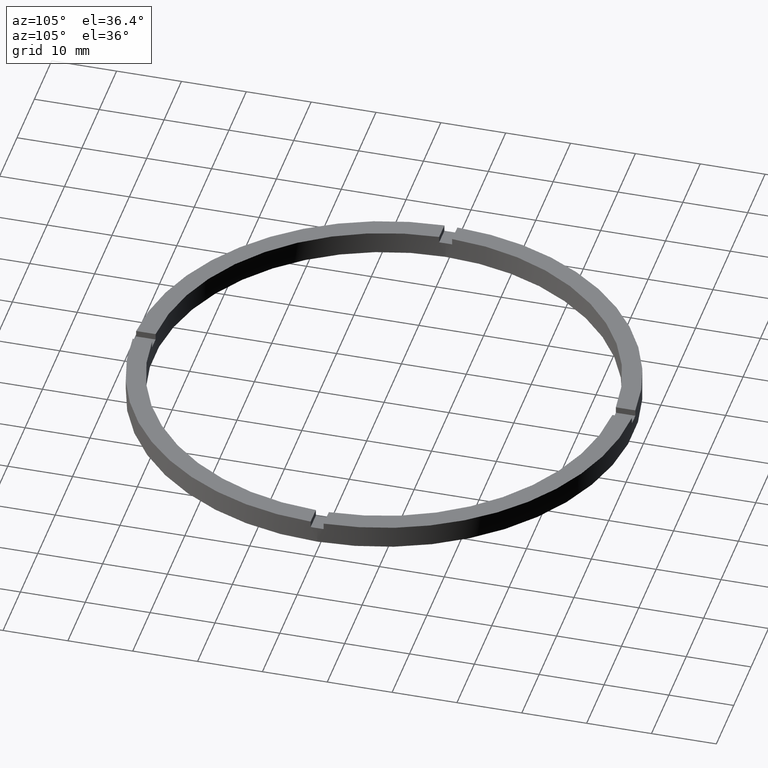
[diagram: clean part render]
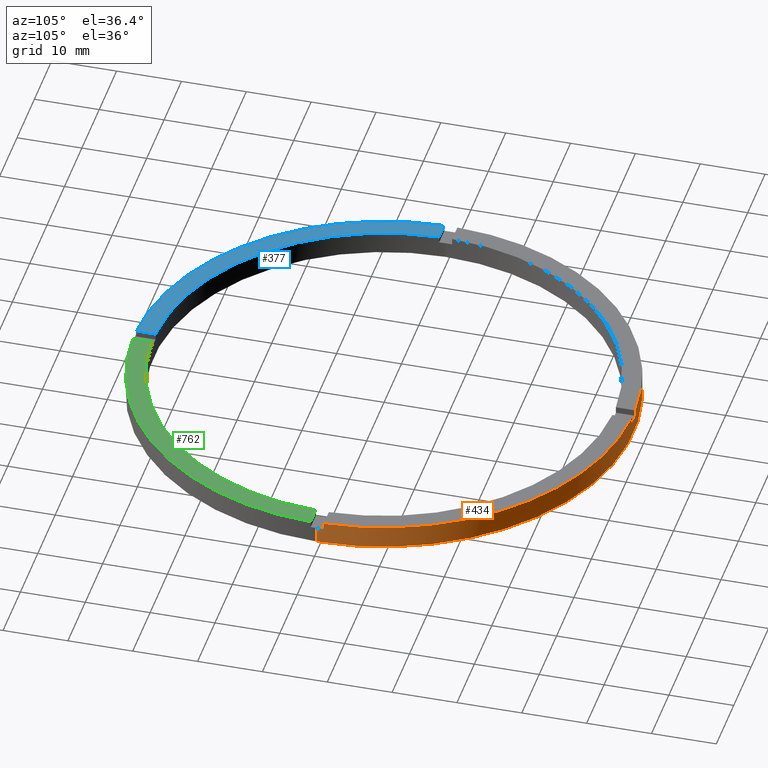
[diagram: same view with three faces highlighted in distinct colors, each labeled with its STEP entity id]
A machine part, auxiliary view with three faces highlighted in distinct colors.
Their STEP definitions:

[orange] entity #434 — the highlighted cylindrical surface (partial cylindrical patch) has radius 38.5 mm, axis along (-0, -0, -1).
#16 = AXIS2_PLACEMENT_3D ( 'NONE', #559, #515, #681 ) ;
#24 = LINE ( 'NONE', #710, #50 ) ;
#26 = EDGE_CURVE ( 'NONE', #741, #753, #661, .T. ) ;
#29 = LINE ( 'NONE', #443, #564 ) ;
#38 = DIRECTION ( 'NONE',  ( 0.000000000000000000, 0.000000000000000000, 1.000000000000000000 ) ) ;
#42 = CARTESIAN_POINT ( 'NONE',  ( -38.50000000000000000, 0.000000000000000000, 3.500000000000000000 ) ) ;
#46 = DIRECTION ( 'NONE',  ( -0.000000000000000000, -0.000000000000000000, -1.000000000000000000 ) ) ;
#50 = VECTOR ( 'NONE', #260, 1000.000000000000000 ) ;
#51 = CIRCLE ( 'NONE', #395, 38.50000000000000000 ) ;
#54 = VECTOR ( 'NONE', #46, 1000.000000000000000 ) ;
#57 = AXIS2_PLACEMENT_3D ( 'NONE', #540, #270, #720 ) ;
#73 = LINE ( 'NONE', #42, #92 ) ;
#76 = FACE_OUTER_BOUND ( 'NONE', #704, .T. ) ;
#78 = DIRECTION ( 'NONE',  ( 0.000000000000000000, 0.000000000000000000, 1.000000000000000000 ) ) ;
#79 = VECTOR ( 'NONE', #290, 1000.000000000000000 ) ;
#92 = VECTOR ( 'NONE', #597, 1000.000000000000000 ) ;
#97 = DIRECTION ( 'NONE',  ( 0.000000000000000000, 0.000000000000000000, 1.000000000000000000 ) ) ;
#104 = DIRECTION ( 'NONE',  ( 1.000000000000000000, 0.000000000000000000, 0.000000000000000000 ) ) ;
#113 = EDGE_CURVE ( 'NONE', #451, #485, #677, .T. ) ;
#119 = CARTESIAN_POINT ( 'NONE',  ( 38.50000000000000000, 4.714890176717309515E-15, 2.500000000000000000 ) ) ;
#123 = CARTESIAN_POINT ( 'NONE',  ( 0.000000000000000000, 0.000000000000000000, 0.000000000000000000 ) ) ;
#126 = AXIS2_PLACEMENT_3D ( 'NONE', #169, #665, #428 ) ;
#129 = CARTESIAN_POINT ( 'NONE',  ( 38.48701079585163853, 0.9999999999998427924, 3.500000000000000000 ) ) ;
#141 = CARTESIAN_POINT ( 'NONE',  ( -38.48701079585163143, 0.9999999999999720224, 3.500000000000000000 ) ) ;
#146 = VERTEX_POINT ( 'NONE', #688 ) ;
#167 = CARTESIAN_POINT ( 'NONE',  ( 38.50000000000000000, 4.714890176717309515E-15, 3.500000000000000000 ) ) ;
#169 = CARTESIAN_POINT ( 'NONE',  ( 0.000000000000000000, 0.000000000000000000, 3.500000000000000000 ) ) ;
#172 = ORIENTED_EDGE ( 'NONE', *, *, #26, .F. ) ;
#175 = VERTEX_POINT ( 'NONE', #310 ) ;
#185 = CARTESIAN_POINT ( 'NONE',  ( -38.50000000000000000, 0.000000000000000000, 2.500000000000000000 ) ) ;
#190 = ORIENTED_EDGE ( 'NONE', *, *, #113, .T. ) ;
#196 = ORIENTED_EDGE ( 'NONE', *, *, #337, .F. ) ;
#199 = VERTEX_POINT ( 'NONE', #628 ) ;
#202 = DIRECTION ( 'NONE',  ( 1.000000000000000000, 0.000000000000000000, 0.000000000000000000 ) ) ;
#243 = ORIENTED_EDGE ( 'NONE', *, *, #685, .F. ) ;
#251 = ORIENTED_EDGE ( 'NONE', *, *, #566, .T. ) ;
#260 = DIRECTION ( 'NONE',  ( 0.000000000000000000, 0.000000000000000000, 1.000000000000000000 ) ) ;
#264 = DIRECTION ( 'NONE',  ( 1.000000000000000000, 0.000000000000000000, 0.000000000000000000 ) ) ;
#270 = DIRECTION ( 'NONE',  ( 0.000000000000000000, -0.000000000000000000, 1.000000000000000000 ) ) ;
#290 = DIRECTION ( 'NONE',  ( -0.000000000000000000, -0.000000000000000000, -1.000000000000000000 ) ) ;
#296 = CARTESIAN_POINT ( 'NONE',  ( -38.50000000000000000, 0.000000000000000000, 0.000000000000000000 ) ) ;
#297 = AXIS2_PLACEMENT_3D ( 'NONE', #529, #97, #104 ) ;
#309 = CARTESIAN_POINT ( 'NONE',  ( 0.000000000000000000, 0.000000000000000000, 3.500000000000000000 ) ) ;
#310 = CARTESIAN_POINT ( 'NONE',  ( -1.000000000000025313, 38.48701079585163143, 3.500000000000000000 ) ) ;
#317 = CIRCLE ( 'NONE', #57, 38.50000000000000000 ) ;
#321 = EDGE_CURVE ( 'NONE', #643, #146, #24, .T. ) ;
#324 = CARTESIAN_POINT ( 'NONE',  ( -1.000000000000025313, 38.48701079585163143, 2.500000000000000000 ) ) ;
#325 = EDGE_CURVE ( 'NONE', #643, #760, #317, .T. ) ;
#337 = EDGE_CURVE ( 'NONE', #523, #485, #51, .T. ) ;
#340 = CYLINDRICAL_SURFACE ( 'NONE', #16, 38.50000000000000000 ) ;
#359 = LINE ( 'NONE', #167, #54 ) ;
#383 = CARTESIAN_POINT ( 'NONE',  ( 0.9999999999999746869, 38.48701079585163143, 2.500000000000000000 ) ) ;
#395 = AXIS2_PLACEMENT_3D ( 'NONE', #781, #548, #536 ) ;
#409 = EDGE_CURVE ( 'NONE', #741, #452, #29, .T. ) ;
#413 = AXIS2_PLACEMENT_3D ( 'NONE', #123, #420, #264 ) ;
#420 = DIRECTION ( 'NONE',  ( 0.000000000000000000, 0.000000000000000000, 1.000000000000000000 ) ) ;
#424 = VECTOR ( 'NONE', #783, 1000.000000000000000 ) ;
#428 = DIRECTION ( 'NONE',  ( 1.000000000000000000, 0.000000000000000000, 0.000000000000000000 ) ) ;
#433 = CARTESIAN_POINT ( 'NONE',  ( -38.48701079585163143, 0.9999999999999720224, 2.500000000000000000 ) ) ;
#434 = ADVANCED_FACE ( 'NONE', ( #76 ), #340, .T. ) ;
#443 = CARTESIAN_POINT ( 'NONE',  ( -38.48701079585163143, 0.9999999999999720224, 3.500000000000000000 ) ) ;
#450 = AXIS2_PLACEMENT_3D ( 'NONE', #309, #38, #202 ) ;
#451 = VERTEX_POINT ( 'NONE', #748 ) ;
#452 = VERTEX_POINT ( 'NONE', #141 ) ;
#466 = ORIENTED_EDGE ( 'NONE', *, *, #325, .F. ) ;
#479 = VERTEX_POINT ( 'NONE', #296 ) ;
#485 = VERTEX_POINT ( 'NONE', #586 ) ;
#515 = DIRECTION ( 'NONE',  ( -0.000000000000000000, -0.000000000000000000, -1.000000000000000000 ) ) ;
#523 = VERTEX_POINT ( 'NONE', #119 ) ;
#526 = EDGE_CURVE ( 'NONE', #175, #760, #584, .T. ) ;
#529 = CARTESIAN_POINT ( 'NONE',  ( 0.000000000000000000, 0.000000000000000000, 2.500000000000000000 ) ) ;
#536 = DIRECTION ( 'NONE',  ( 1.000000000000000000, 0.000000000000000000, 0.000000000000000000 ) ) ;
#540 = CARTESIAN_POINT ( 'NONE',  ( 0.000000000000000000, 0.000000000000000000, 2.500000000000000000 ) ) ;
#541 = CARTESIAN_POINT ( 'NONE',  ( -1.000000000000025313, 38.48701079585163143, 3.500000000000000000 ) ) ;
#548 = DIRECTION ( 'NONE',  ( 0.000000000000000000, 0.000000000000000000, 1.000000000000000000 ) ) ;
#559 = CARTESIAN_POINT ( 'NONE',  ( 0.000000000000000000, 0.000000000000000000, 3.500000000000000000 ) ) ;
#564 = VECTOR ( 'NONE', #78, 1000.000000000000000 ) ;
#566 = EDGE_CURVE ( 'NONE', #523, #199, #359, .T. ) ;
#579 = CIRCLE ( 'NONE', #450, 38.50000000000000000 ) ;
#581 = EDGE_CURVE ( 'NONE', #199, #479, #623, .T. ) ;
#584 = LINE ( 'NONE', #541, #79 ) ;
#586 = CARTESIAN_POINT ( 'NONE',  ( 38.48701079585163853, 0.9999999999998427924, 2.500000000000000000 ) ) ;
#588 = CIRCLE ( 'NONE', #126, 38.50000000000000000 ) ;
#597 = DIRECTION ( 'NONE',  ( -0.000000000000000000, -0.000000000000000000, -1.000000000000000000 ) ) ;
#623 = CIRCLE ( 'NONE', #413, 38.50000000000000000 ) ;
#628 = CARTESIAN_POINT ( 'NONE',  ( 38.50000000000000000, 4.714890176717309515E-15, 0.000000000000000000 ) ) ;
#632 = ORIENTED_EDGE ( 'NONE', *, *, #683, .F. ) ;
#634 = ORIENTED_EDGE ( 'NONE', *, *, #581, .T. ) ;
#643 = VERTEX_POINT ( 'NONE', #383 ) ;
#661 = CIRCLE ( 'NONE', #297, 38.50000000000000000 ) ;
#665 = DIRECTION ( 'NONE',  ( 0.000000000000000000, 0.000000000000000000, 1.000000000000000000 ) ) ;
#677 = LINE ( 'NONE', #129, #424 ) ;
#681 = DIRECTION ( 'NONE',  ( -1.000000000000000000, 0.000000000000000000, 0.000000000000000000 ) ) ;
#683 = EDGE_CURVE ( 'NONE', #451, #146, #579, .T. ) ;
#685 = EDGE_CURVE ( 'NONE', #175, #452, #588, .T. ) ;
#688 = CARTESIAN_POINT ( 'NONE',  ( 0.9999999999999746869, 38.48701079585163143, 3.500000000000000000 ) ) ;
#704 = EDGE_LOOP ( 'NONE', ( #196, #251, #634, #732, #172, #763, #243, #713, #466, #754, #632, #190 ) ) ;
#705 = EDGE_CURVE ( 'NONE', #753, #479, #73, .T. ) ;
#710 = CARTESIAN_POINT ( 'NONE',  ( 0.9999999999999746869, 38.48701079585163143, 3.500000000000000000 ) ) ;
#713 = ORIENTED_EDGE ( 'NONE', *, *, #526, .T. ) ;
#720 = DIRECTION ( 'NONE',  ( 1.000000000000000000, 0.000000000000000000, 0.000000000000000000 ) ) ;
#732 = ORIENTED_EDGE ( 'NONE', *, *, #705, .F. ) ;
#741 = VERTEX_POINT ( 'NONE', #433 ) ;
#748 = CARTESIAN_POINT ( 'NONE',  ( 38.48701079585163853, 0.9999999999998427924, 3.500000000000000000 ) ) ;
#753 = VERTEX_POINT ( 'NONE', #185 ) ;
#754 = ORIENTED_EDGE ( 'NONE', *, *, #321, .T. ) ;
#760 = VERTEX_POINT ( 'NONE', #324 ) ;
#763 = ORIENTED_EDGE ( 'NONE', *, *, #409, .T. ) ;
#781 = CARTESIAN_POINT ( 'NONE',  ( 0.000000000000000000, 0.000000000000000000, 2.500000000000000000 ) ) ;
#783 = DIRECTION ( 'NONE',  ( -0.000000000000000000, -0.000000000000000000, -1.000000000000000000 ) ) ;

[blue] entity #377 — the highlighted planar face has unit normal (0, 0, 1).
#12 = CARTESIAN_POINT ( 'NONE',  ( -1.000000000000160982, -28.50000000000017764, 3.500000000000000000 ) ) ;
#27 = LINE ( 'NONE', #12, #563 ) ;
#44 = CARTESIAN_POINT ( 'NONE',  ( -35.48591269785801217, -1.000000000000027311, 3.500000000000000000 ) ) ;
#52 = CARTESIAN_POINT ( 'NONE',  ( -38.48701079585163143, -1.000000000000027978, 3.500000000000000000 ) ) ;
#109 = ORIENTED_EDGE ( 'NONE', *, *, #279, .F. ) ;
#131 = EDGE_CURVE ( 'NONE', #691, #250, #429, .T. ) ;
#162 = CARTESIAN_POINT ( 'NONE',  ( -1.000000000000160094, -35.48591269785800506, 3.500000000000000000 ) ) ;
#176 = CARTESIAN_POINT ( 'NONE',  ( 0.000000000000000000, 0.000000000000000000, 3.500000000000000000 ) ) ;
#201 = ORIENTED_EDGE ( 'NONE', *, *, #436, .T. ) ;
#218 = AXIS2_PLACEMENT_3D ( 'NONE', #176, #591, #303 ) ;
#237 = DIRECTION ( 'NONE',  ( 1.000000000000000000, 1.951563910473907735E-16, -0.000000000000000000 ) ) ;
#244 = CARTESIAN_POINT ( 'NONE',  ( -28.50000000000018474, -1.000000000000025979, 3.500000000000000000 ) ) ;
#250 = VERTEX_POINT ( 'NONE', #44 ) ;
#269 = CARTESIAN_POINT ( 'NONE',  ( 0.000000000000000000, 0.000000000000000000, 3.500000000000000000 ) ) ;
#279 = EDGE_CURVE ( 'NONE', #250, #467, #315, .T. ) ;
#302 = DIRECTION ( 'NONE',  ( 1.000000000000000000, 0.000000000000000000, 0.000000000000000000 ) ) ;
#303 = DIRECTION ( 'NONE',  ( 1.000000000000000000, 0.000000000000000000, -0.000000000000000000 ) ) ;
#315 = CIRCLE ( 'NONE', #528, 35.50000000000000711 ) ;
#374 = PLANE ( 'NONE',  #218 ) ;
#377 = ADVANCED_FACE ( 'NONE', ( #582 ), #374, .T. ) ;
#387 = CARTESIAN_POINT ( 'NONE',  ( 0.000000000000000000, 0.000000000000000000, 3.500000000000000000 ) ) ;
#397 = EDGE_CURVE ( 'NONE', #467, #457, #27, .T. ) ;
#426 = VECTOR ( 'NONE', #237, 1000.000000000000000 ) ;
#429 = LINE ( 'NONE', #244, #426 ) ;
#436 = EDGE_CURVE ( 'NONE', #691, #457, #587, .T. ) ;
#457 = VERTEX_POINT ( 'NONE', #721 ) ;
#461 = ORIENTED_EDGE ( 'NONE', *, *, #397, .F. ) ;
#467 = VERTEX_POINT ( 'NONE', #162 ) ;
#528 = AXIS2_PLACEMENT_3D ( 'NONE', #269, #611, #302 ) ;
#557 = DIRECTION ( 'NONE',  ( 0.000000000000000000, 0.000000000000000000, 1.000000000000000000 ) ) ;
#563 = VECTOR ( 'NONE', #631, 1000.000000000000000 ) ;
#582 = FACE_OUTER_BOUND ( 'NONE', #730, .T. ) ;
#587 = CIRCLE ( 'NONE', #664, 38.50000000000000000 ) ;
#591 = DIRECTION ( 'NONE',  ( 0.000000000000000000, 0.000000000000000000, 1.000000000000000000 ) ) ;
#611 = DIRECTION ( 'NONE',  ( 0.000000000000000000, 0.000000000000000000, 1.000000000000000000 ) ) ;
#631 = DIRECTION ( 'NONE',  ( 1.301042606982605074E-16, -1.000000000000000000, 0.000000000000000000 ) ) ;
#636 = ORIENTED_EDGE ( 'NONE', *, *, #131, .F. ) ;
#664 = AXIS2_PLACEMENT_3D ( 'NONE', #387, #557, #676 ) ;
#676 = DIRECTION ( 'NONE',  ( 1.000000000000000000, 0.000000000000000000, 0.000000000000000000 ) ) ;
#691 = VERTEX_POINT ( 'NONE', #52 ) ;
#721 = CARTESIAN_POINT ( 'NONE',  ( -1.000000000000159650, -38.48701079585163143, 3.500000000000000000 ) ) ;
#730 = EDGE_LOOP ( 'NONE', ( #461, #109, #636, #201 ) ) ;

[green] entity #762 — the highlighted planar face has unit normal (0, 0, 1).
#3 = CARTESIAN_POINT ( 'NONE',  ( 0.9999999999998391287, -28.50000000000017764, 3.500000000000000000 ) ) ;
#10 = CARTESIAN_POINT ( 'NONE',  ( 0.000000000000000000, 0.000000000000000000, 3.500000000000000000 ) ) ;
#32 = CARTESIAN_POINT ( 'NONE',  ( 0.000000000000000000, 0.000000000000000000, 3.500000000000000000 ) ) ;
#34 = EDGE_CURVE ( 'NONE', #216, #406, #663, .T. ) ;
#53 = CARTESIAN_POINT ( 'NONE',  ( 0.000000000000000000, 0.000000000000000000, 3.500000000000000000 ) ) ;
#64 = FACE_OUTER_BOUND ( 'NONE', #752, .T. ) ;
#94 = EDGE_CURVE ( 'NONE', #504, #125, #159, .T. ) ;
#120 = AXIS2_PLACEMENT_3D ( 'NONE', #32, #419, #776 ) ;
#125 = VERTEX_POINT ( 'NONE', #299 ) ;
#142 = EDGE_CURVE ( 'NONE', #504, #216, #155, .T. ) ;
#155 = LINE ( 'NONE', #3, #319 ) ;
#159 = CIRCLE ( 'NONE', #282, 38.50000000000000000 ) ;
#205 = CARTESIAN_POINT ( 'NONE',  ( 35.48591269785800506, -1.000000000000157430, 3.500000000000000000 ) ) ;
#216 = VERTEX_POINT ( 'NONE', #385 ) ;
#263 = DIRECTION ( 'NONE',  ( 0.000000000000000000, 0.000000000000000000, 1.000000000000000000 ) ) ;
#273 = EDGE_CURVE ( 'NONE', #406, #125, #577, .T. ) ;
#282 = AXIS2_PLACEMENT_3D ( 'NONE', #53, #570, #621 ) ;
#299 = CARTESIAN_POINT ( 'NONE',  ( 38.48701079585163143, -1.000000000000157208, 3.500000000000000000 ) ) ;
#319 = VECTOR ( 'NONE', #407, 1000.000000000000000 ) ;
#329 = VECTOR ( 'NONE', #547, 1000.000000000000000 ) ;
#341 = AXIS2_PLACEMENT_3D ( 'NONE', #10, #263, #734 ) ;
#385 = CARTESIAN_POINT ( 'NONE',  ( 0.9999999999998400169, -35.48591269785801927, 3.500000000000000000 ) ) ;
#388 = ORIENTED_EDGE ( 'NONE', *, *, #94, .T. ) ;
#406 = VERTEX_POINT ( 'NONE', #205 ) ;
#407 = DIRECTION ( 'NONE',  ( -1.301042606982605074E-16, 1.000000000000000000, -0.000000000000000000 ) ) ;
#419 = DIRECTION ( 'NONE',  ( 0.000000000000000000, 0.000000000000000000, 1.000000000000000000 ) ) ;
#437 = PLANE ( 'NONE',  #341 ) ;
#439 = CARTESIAN_POINT ( 'NONE',  ( 28.49999999999998934, -1.000000000000157874, 3.500000000000000000 ) ) ;
#496 = ORIENTED_EDGE ( 'NONE', *, *, #273, .F. ) ;
#504 = VERTEX_POINT ( 'NONE', #653 ) ;
#547 = DIRECTION ( 'NONE',  ( 1.000000000000000000, 6.505213034913025371E-17, 0.000000000000000000 ) ) ;
#570 = DIRECTION ( 'NONE',  ( 0.000000000000000000, 0.000000000000000000, 1.000000000000000000 ) ) ;
#577 = LINE ( 'NONE', #439, #329 ) ;
#621 = DIRECTION ( 'NONE',  ( 1.000000000000000000, 0.000000000000000000, 0.000000000000000000 ) ) ;
#653 = CARTESIAN_POINT ( 'NONE',  ( 0.9999999999998404610, -38.48701079585163853, 3.500000000000000000 ) ) ;
#663 = CIRCLE ( 'NONE', #120, 35.50000000000000711 ) ;
#726 = ORIENTED_EDGE ( 'NONE', *, *, #34, .F. ) ;
#734 = DIRECTION ( 'NONE',  ( 1.000000000000000000, 0.000000000000000000, -0.000000000000000000 ) ) ;
#752 = EDGE_LOOP ( 'NONE', ( #496, #726, #761, #388 ) ) ;
#761 = ORIENTED_EDGE ( 'NONE', *, *, #142, .F. ) ;
#762 = ADVANCED_FACE ( 'NONE', ( #64 ), #437, .T. ) ;
#776 = DIRECTION ( 'NONE',  ( 1.000000000000000000, 0.000000000000000000, 0.000000000000000000 ) ) ;